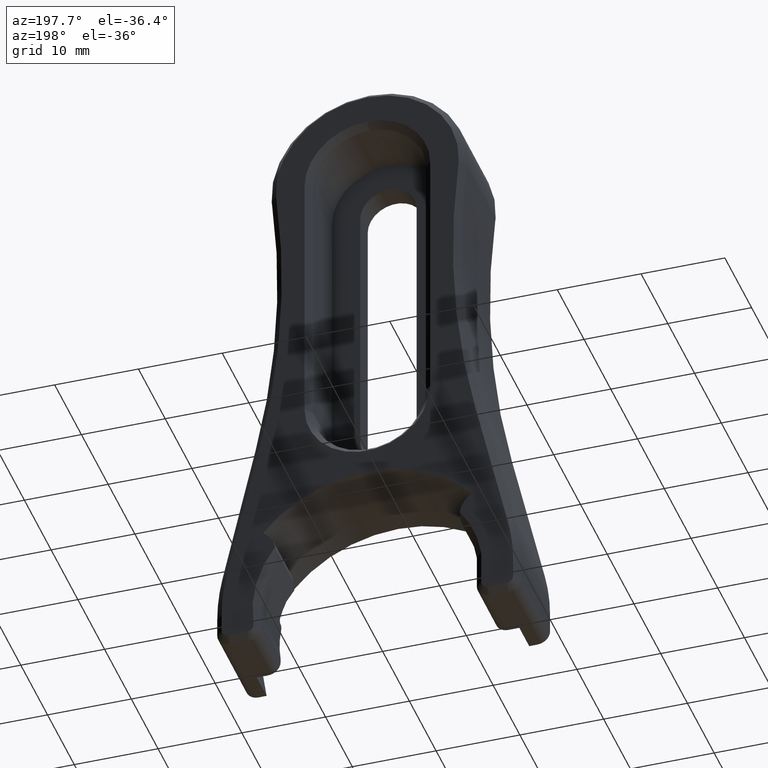
[diagram: clean part render]
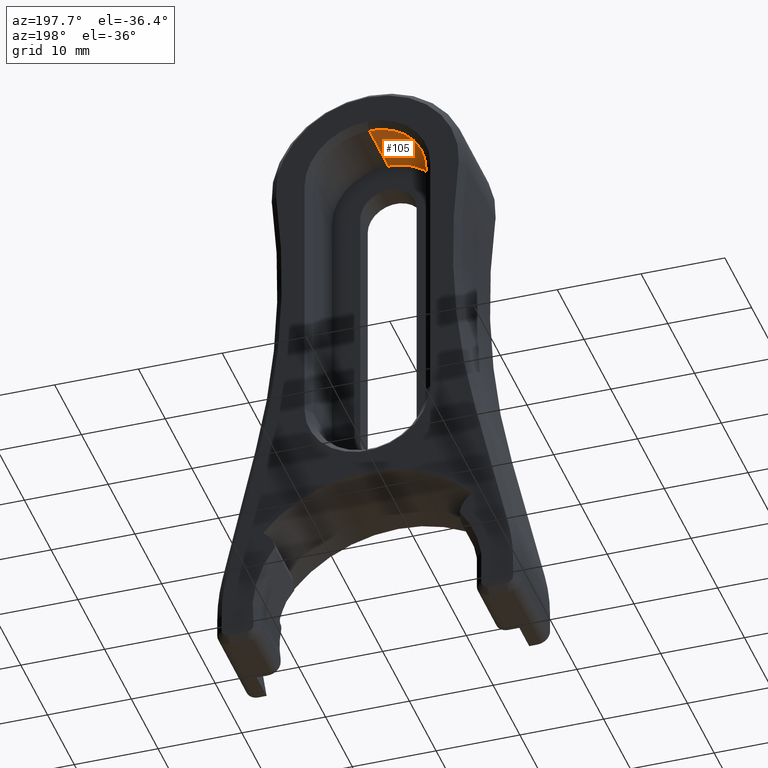
[diagram: same view with one face highlighted and labeled with its STEP entity id]
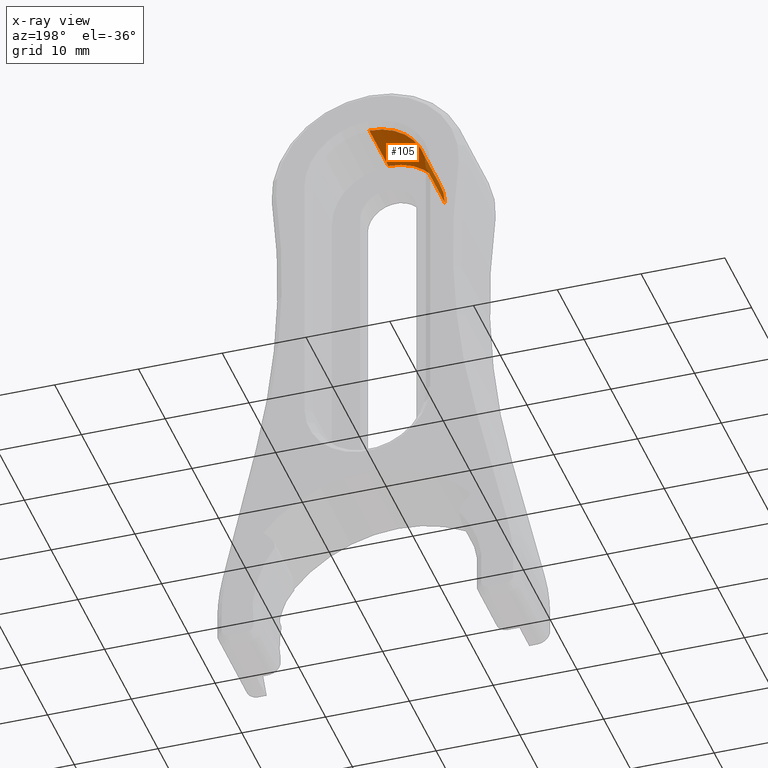
[diagram: x-ray of the same camera — body ghosted, the highlighted face saturated]
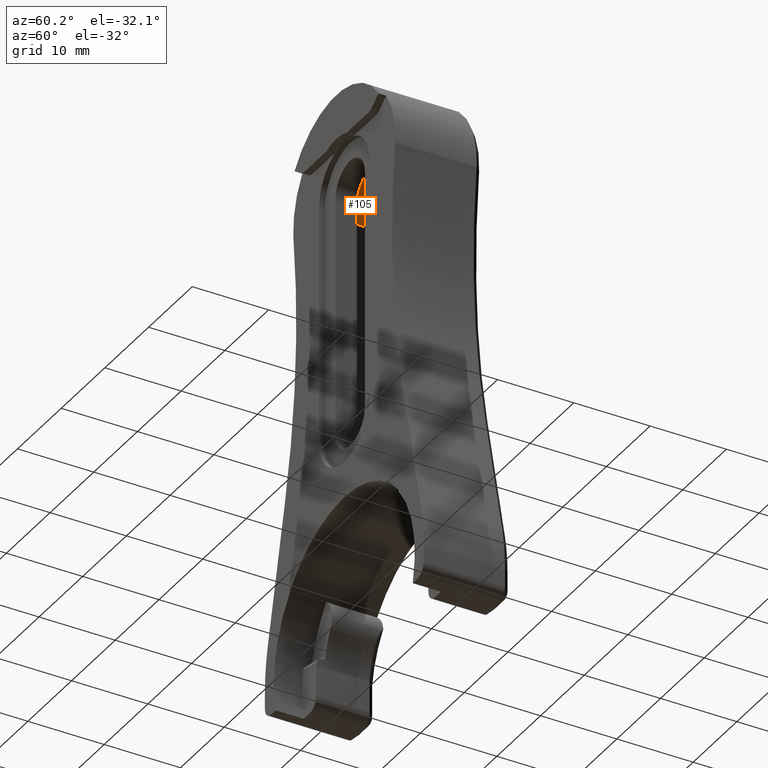
[diagram: same view with one face highlighted and labeled with its STEP entity id]
A machine part, auxiliary view. The second image highlights one B-rep face of the part: STEP entity #105.
The next image is the same camera in x-ray: the body ghosted, the highlighted face saturated — about 3% of this face is hidden behind the body in this view.
A second angle (auxiliary view) of the same face is appended — the face is thin or edge-on in the first view.
In plain terms, the highlighted cylindrical surface (partial cylindrical patch) has radius 6.7437 mm, axis along (-0, 1, -0).
Its self-contained STEP definition (entity closure, byte-faithful):
#105 = ADVANCED_FACE ( 'NONE', ( #1135 ), #3992, .F. ) ;
#390 = AXIS2_PLACEMENT_3D ( 'NONE', #4215, #3883, #1869 ) ;
#519 = VERTEX_POINT ( 'NONE', #1809 ) ;
#695 = DIRECTION ( 'NONE',  ( -0.0000000000000000000, 1.000000000000000000, -0.0000000000000000000 ) ) ;
#990 = ORIENTED_EDGE ( 'NONE', *, *, #1477, .F. ) ;
#1135 = FACE_OUTER_BOUND ( 'NONE', #3896, .T. ) ;
#1207 = AXIS2_PLACEMENT_3D ( 'NONE', #3594, #1571, #3932 ) ;
#1222 = CARTESIAN_POINT ( 'NONE',  ( 5.463695987328526400E-016, -0.08499999999999997800, 2.560499999999999800 ) ) ;
#1332 = ORIENTED_EDGE ( 'NONE', *, *, #2290, .T. ) ;
#1347 = EDGE_CURVE ( 'NONE', #1498, #3174, #3631, .T. ) ;
#1477 = EDGE_CURVE ( 'NONE', #2366, #1498, #3616, .T. ) ;
#1492 = DIRECTION ( 'NONE',  ( 0.0000000000000000000, 1.000000000000000000, 0.0000000000000000000 ) ) ;
#1498 = VERTEX_POINT ( 'NONE', #1222 ) ;
#1571 = DIRECTION ( 'NONE',  ( 0.0000000000000000000, 1.000000000000000000, 0.0000000000000000000 ) ) ;
#1790 = CARTESIAN_POINT ( 'NONE',  ( 5.463695987328526400E-016, 0.1949999999999997600, 2.560499999999999800 ) ) ;
#1809 = CARTESIAN_POINT ( 'NONE',  ( -0.2654999999999998500, 0.1949999999999997600, 2.294999999999999500 ) ) ;
#1835 = CARTESIAN_POINT ( 'NONE',  ( -0.2654999999999998500, -0.08499999999999997800, 2.294999999999999500 ) ) ;
#1855 = AXIS2_PLACEMENT_3D ( 'NONE', #3506, #1492, #3843 ) ;
#1869 = DIRECTION ( 'NONE',  ( 0.0000000000000000000, 0.0000000000000000000, 1.000000000000000000 ) ) ;
#2290 = EDGE_CURVE ( 'NONE', #519, #3174, #3463, .T. ) ;
#2344 = DIRECTION ( 'NONE',  ( -0.0000000000000000000, 1.000000000000000000, -0.0000000000000000000 ) ) ;
#2366 = VERTEX_POINT ( 'NONE', #1835 ) ;
#2750 = VECTOR ( 'NONE', #695, 39.37007874015748100 ) ;
#2770 = CARTESIAN_POINT ( 'NONE',  ( 5.463695987328526400E-016, -0.08499999999999997800, 2.560499999999999800 ) ) ;
#2823 = CARTESIAN_POINT ( 'NONE',  ( -0.2654999999999998500, -0.08499999999999997800, 2.294999999999999500 ) ) ;
#3174 = VERTEX_POINT ( 'NONE', #1790 ) ;
#3302 = VECTOR ( 'NONE', #2344, 39.37007874015748100 ) ;
#3463 = CIRCLE ( 'NONE', #1855, 0.2654999999999999600 ) ;
#3506 = CARTESIAN_POINT ( 'NONE',  ( 5.463695987328526400E-016, 0.1949999999999997600, 2.294999999999999500 ) ) ;
#3594 = CARTESIAN_POINT ( 'NONE',  ( 5.463695987328526400E-016, -0.08499999999999997800, 2.294999999999999500 ) ) ;
#3616 = CIRCLE ( 'NONE', #1207, 0.2654999999999999600 ) ;
#3631 = LINE ( 'NONE', #2770, #2750 ) ;
#3732 = EDGE_CURVE ( 'NONE', #2366, #519, #4092, .T. ) ;
#3843 = DIRECTION ( 'NONE',  ( 0.0000000000000000000, 0.0000000000000000000, 1.000000000000000000 ) ) ;
#3853 = ORIENTED_EDGE ( 'NONE', *, *, #1347, .F. ) ;
#3883 = DIRECTION ( 'NONE',  ( -0.0000000000000000000, 1.000000000000000000, -0.0000000000000000000 ) ) ;
#3896 = EDGE_LOOP ( 'NONE', ( #3853, #990, #4230, #1332 ) ) ;
#3932 = DIRECTION ( 'NONE',  ( 0.0000000000000000000, 0.0000000000000000000, 1.000000000000000000 ) ) ;
#3992 = CYLINDRICAL_SURFACE ( 'NONE', #390, 0.2654999999999999600 ) ;
#4092 = LINE ( 'NONE', #2823, #3302 ) ;
#4215 = CARTESIAN_POINT ( 'NONE',  ( 5.463695987328526400E-016, -0.08499999999999997800, 2.294999999999999500 ) ) ;
#4230 = ORIENTED_EDGE ( 'NONE', *, *, #3732, .T. ) ;